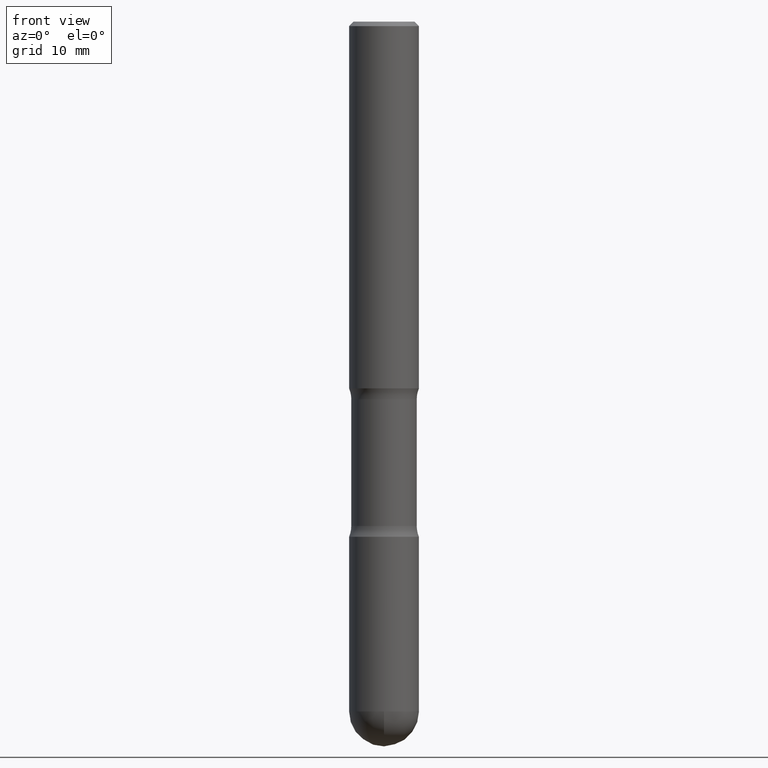
[diagram: clean part render]
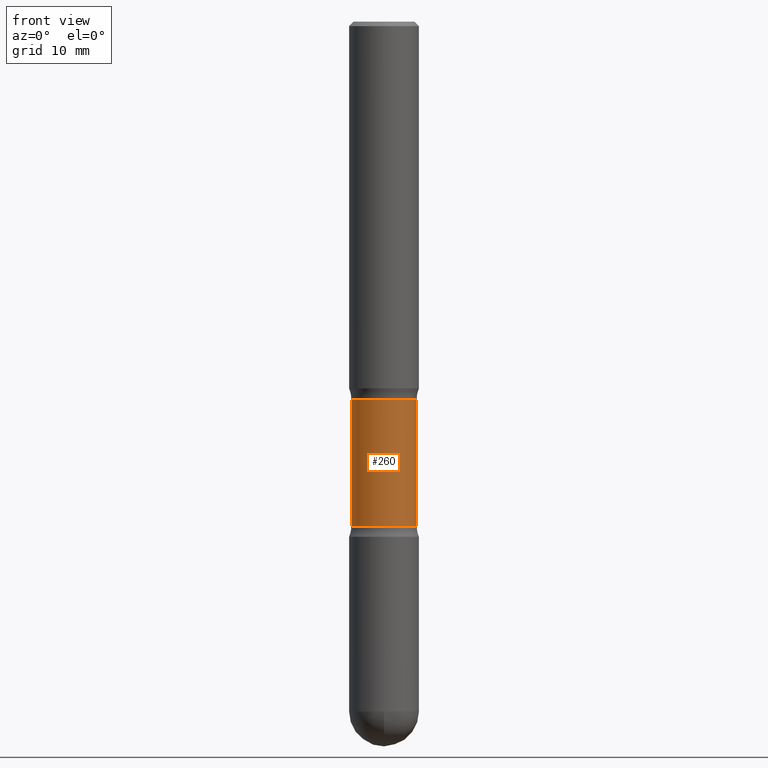
[diagram: same view with one face highlighted and labeled with its STEP entity id]
A machine part, front view. The second image highlights one B-rep face of the part: STEP entity #260.
In plain terms, the highlighted cylindrical surface (edge-blend (fillet) strip) has radius 3.7465 mm, axis along (0, -0, -1).
Its self-contained STEP definition (entity closure, byte-faithful):
#38 = CIRCLE ( 'NONE', #350, 0.1474999999999997424 ) ;
#46 = DIRECTION ( 'NONE',  ( -1.000000000000000000, 6.982962677686269866E-15, 0.000000000000000000 ) ) ;
#55 = FACE_OUTER_BOUND ( 'NONE', #58, .T. ) ;
#58 = EDGE_LOOP ( 'NONE', ( #535, #411, #369, #157 ) ) ;
#80 = DIRECTION ( 'NONE',  ( 2.445468806185136597E-29, -3.491481338843145583E-15, -1.000000000000000000 ) ) ;
#98 = EDGE_CURVE ( 'NONE', #320, #149, #38, .T. ) ;
#105 = VECTOR ( 'NONE', #425, 39.37007874015748143 ) ;
#149 = VERTEX_POINT ( 'NONE', #430 ) ;
#153 = LINE ( 'NONE', #553, #311 ) ;
#157 = ORIENTED_EDGE ( 'NONE', *, *, #98, .F. ) ;
#169 = LINE ( 'NONE', #337, #105 ) ;
#189 = DIRECTION ( 'NONE',  ( -1.000000000000000000, 6.982962677686265922E-15, 0.000000000000000000 ) ) ;
#200 = CARTESIAN_POINT ( 'NONE',  ( -0.1474999999999996314, -4.914224353350722602E-15, -1.702489794855663430 ) ) ;
#210 = CARTESIAN_POINT ( 'NONE',  ( 5.560531927865903420E-29, -7.938965899332559433E-15, -2.273810205144337626 ) ) ;
#246 = CARTESIAN_POINT ( 'NONE',  ( 4.163385686168057181E-29, -5.944211348309444418E-15, -1.702489794855663430 ) ) ;
#260 = ADVANCED_FACE ( 'NONE', ( #55 ), #403, .T. ) ;
#264 = DIRECTION ( 'NONE',  ( 2.445468806185136597E-29, -3.491481338843145583E-15, -1.000000000000000000 ) ) ;
#308 = CARTESIAN_POINT ( 'NONE',  ( 0.1474999999999996314, -6.904913815703451450E-15, -1.702489794855663430 ) ) ;
#311 = VECTOR ( 'NONE', #415, 39.37007874015748143 ) ;
#320 = VERTEX_POINT ( 'NONE', #450 ) ;
#337 = CARTESIAN_POINT ( 'NONE',  ( 0.1474999999999996869, -9.121936308536156521E-15, -2.322799999999999976 ) ) ;
#350 = AXIS2_PLACEMENT_3D ( 'NONE', #210, #80, #46 ) ;
#355 = VERTEX_POINT ( 'NONE', #308 ) ;
#357 = CARTESIAN_POINT ( 'NONE',  ( 5.680334943006835158E-29, -8.110012853864858834E-15, -2.322799999999999976 ) ) ;
#369 = ORIENTED_EDGE ( 'NONE', *, *, #494, .T. ) ;
#385 = DIRECTION ( 'NONE',  ( 2.445468806185136597E-29, -3.491481338843145583E-15, -1.000000000000000000 ) ) ;
#403 = CYLINDRICAL_SURFACE ( 'NONE', #565, 0.1474999999999996869 ) ;
#411 = ORIENTED_EDGE ( 'NONE', *, *, #552, .T. ) ;
#415 = DIRECTION ( 'NONE',  ( 2.445468806185136877E-29, -3.491481338843145188E-15, -1.000000000000000000 ) ) ;
#425 = DIRECTION ( 'NONE',  ( 2.445468806185136877E-29, -3.491481338843145188E-15, -1.000000000000000000 ) ) ;
#430 = CARTESIAN_POINT ( 'NONE',  ( -0.1474999999999997424, -6.908978904373836039E-15, -2.273810205144337626 ) ) ;
#450 = CARTESIAN_POINT ( 'NONE',  ( 0.1474999999999997702, -7.953512078492301190E-15, -2.273810205144337626 ) ) ;
#453 = VERTEX_POINT ( 'NONE', #200 ) ;
#472 = DIRECTION ( 'NONE',  ( -1.000000000000000000, 6.982962677686268288E-15, 0.000000000000000000 ) ) ;
#494 = EDGE_CURVE ( 'NONE', #453, #149, #153, .T. ) ;
#501 = AXIS2_PLACEMENT_3D ( 'NONE', #246, #385, #472 ) ;
#535 = ORIENTED_EDGE ( 'NONE', *, *, #542, .F. ) ;
#542 = EDGE_CURVE ( 'NONE', #355, #320, #169, .T. ) ;
#552 = EDGE_CURVE ( 'NONE', #355, #453, #555, .T. ) ;
#553 = CARTESIAN_POINT ( 'NONE',  ( -0.1474999999999996869, -7.080025858906136230E-15, -2.322799999999999976 ) ) ;
#555 = CIRCLE ( 'NONE', #501, 0.1474999999999996314 ) ;
#565 = AXIS2_PLACEMENT_3D ( 'NONE', #357, #264, #189 ) ;